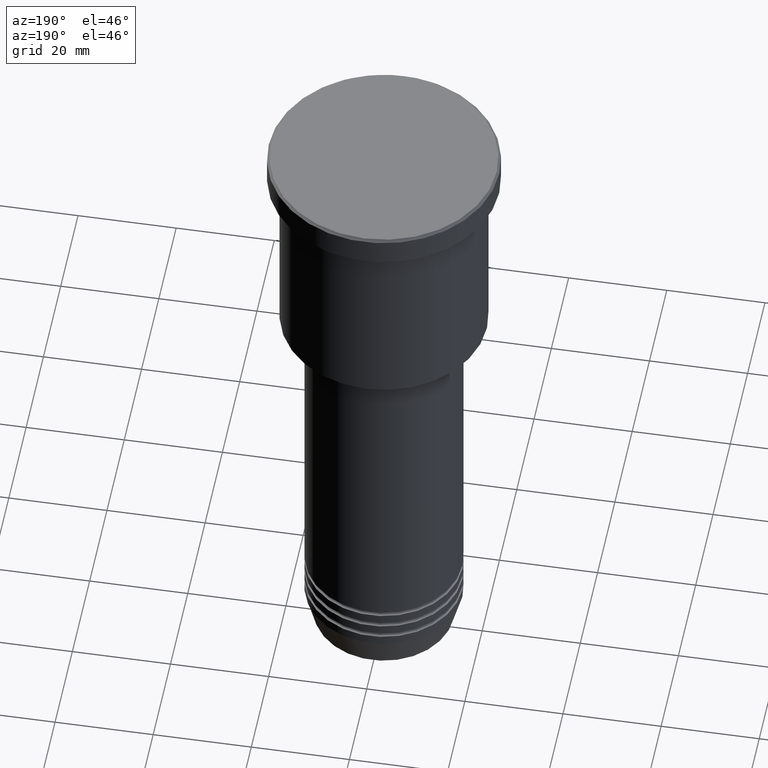
[diagram: clean part render]
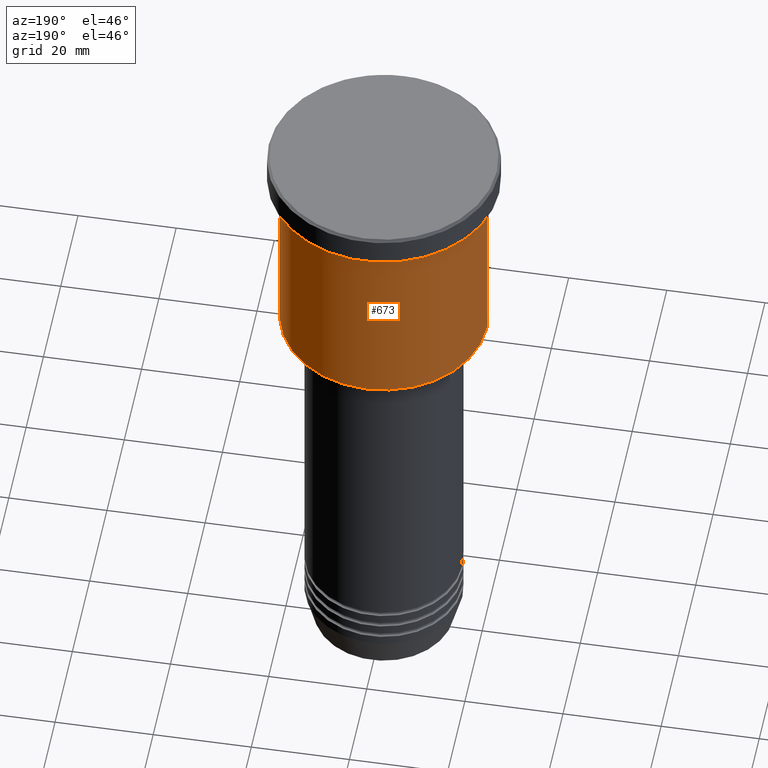
[diagram: same view with one face highlighted and labeled with its STEP entity id]
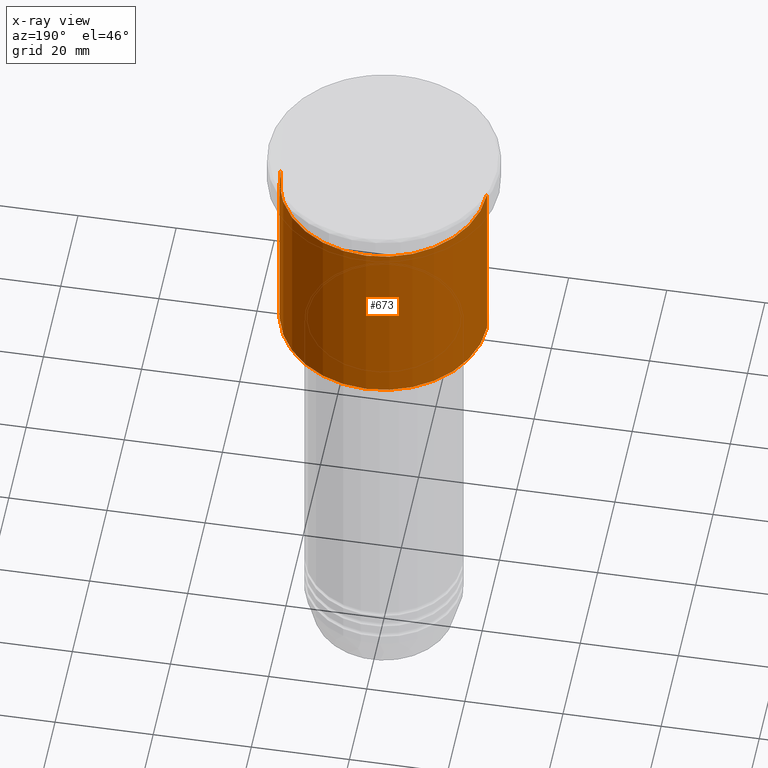
[diagram: x-ray of the same camera — body ghosted, the highlighted face saturated]
A machine part, auxiliary view. The second image highlights one B-rep face of the part: STEP entity #673.
The next image is the same camera in x-ray: the body ghosted, the highlighted face saturated — about 0% of this face is hidden behind the body in this view.
In plain terms, the highlighted cylindrical surface (partial cylindrical patch) has radius 21 mm, axis along (-0, -0, 1).
Its self-contained STEP definition (entity closure, byte-faithful):
#45 = VECTOR ( 'NONE', #282, 1000.000000000000000 ) ;
#65 = EDGE_LOOP ( 'NONE', ( #600, #1175, #840, #768 ) ) ;
#86 = LINE ( 'NONE', #1103, #529 ) ;
#97 = CARTESIAN_POINT ( 'NONE',  ( 0.000000000000000000, 0.000000000000000000, 0.000000000000000000 ) ) ;
#105 = LINE ( 'NONE', #478, #45 ) ;
#157 = AXIS2_PLACEMENT_3D ( 'NONE', #321, #1047, #226 ) ;
#190 = AXIS2_PLACEMENT_3D ( 'NONE', #97, #847, #555 ) ;
#195 = VERTEX_POINT ( 'NONE', #301 ) ;
#197 = CARTESIAN_POINT ( 'NONE',  ( -21.00000000000000000, 2.571758278209441661E-15, -6.999999999999994671 ) ) ;
#226 = DIRECTION ( 'NONE',  ( 1.000000000000000000, 0.000000000000000000, 0.000000000000000000 ) ) ;
#265 = CARTESIAN_POINT ( 'NONE',  ( 21.00000000000000000, 0.000000000000000000, -6.999999999999994671 ) ) ;
#282 = DIRECTION ( 'NONE',  ( -0.000000000000000000, -0.000000000000000000, 1.000000000000000000 ) ) ;
#287 = EDGE_CURVE ( 'NONE', #195, #424, #86, .T. ) ;
#301 = CARTESIAN_POINT ( 'NONE',  ( -21.00000000000000000, 2.571758278209441661E-15, -45.49999999999998579 ) ) ;
#321 = CARTESIAN_POINT ( 'NONE',  ( 0.000000000000000000, 0.000000000000000000, -6.999999999999994671 ) ) ;
#381 = EDGE_CURVE ( 'NONE', #769, #424, #603, .T. ) ;
#424 = VERTEX_POINT ( 'NONE', #197 ) ;
#434 = VERTEX_POINT ( 'NONE', #652 ) ;
#471 = CYLINDRICAL_SURFACE ( 'NONE', #190, 21.00000000000000000 ) ;
#478 = CARTESIAN_POINT ( 'NONE',  ( 21.00000000000000000, 0.000000000000000000, 0.000000000000000000 ) ) ;
#529 = VECTOR ( 'NONE', #822, 1000.000000000000000 ) ;
#548 = FACE_OUTER_BOUND ( 'NONE', #65, .T. ) ;
#555 = DIRECTION ( 'NONE',  ( 1.000000000000000000, 0.000000000000000000, 0.000000000000000000 ) ) ;
#600 = ORIENTED_EDGE ( 'NONE', *, *, #978, .T. ) ;
#603 = CIRCLE ( 'NONE', #157, 21.00000000000000000 ) ;
#611 = DIRECTION ( 'NONE',  ( -1.000000000000000000, 0.000000000000000000, 0.000000000000000000 ) ) ;
#652 = CARTESIAN_POINT ( 'NONE',  ( 21.00000000000000000, 0.000000000000000000, -45.49999999999998579 ) ) ;
#662 = CARTESIAN_POINT ( 'NONE',  ( 0.000000000000000000, 0.000000000000000000, -45.49999999999998579 ) ) ;
#673 = ADVANCED_FACE ( 'NONE', ( #548 ), #471, .T. ) ;
#768 = ORIENTED_EDGE ( 'NONE', *, *, #817, .F. ) ;
#769 = VERTEX_POINT ( 'NONE', #265 ) ;
#773 = AXIS2_PLACEMENT_3D ( 'NONE', #662, #1023, #611 ) ;
#817 = EDGE_CURVE ( 'NONE', #434, #769, #105, .T. ) ;
#822 = DIRECTION ( 'NONE',  ( -0.000000000000000000, -0.000000000000000000, 1.000000000000000000 ) ) ;
#840 = ORIENTED_EDGE ( 'NONE', *, *, #381, .F. ) ;
#847 = DIRECTION ( 'NONE',  ( -0.000000000000000000, -0.000000000000000000, 1.000000000000000000 ) ) ;
#966 = CIRCLE ( 'NONE', #773, 21.00000000000000000 ) ;
#978 = EDGE_CURVE ( 'NONE', #434, #195, #966, .T. ) ;
#1023 = DIRECTION ( 'NONE',  ( -0.000000000000000000, -0.000000000000000000, 1.000000000000000000 ) ) ;
#1047 = DIRECTION ( 'NONE',  ( -0.000000000000000000, -0.000000000000000000, 1.000000000000000000 ) ) ;
#1103 = CARTESIAN_POINT ( 'NONE',  ( -21.00000000000000000, 2.571758278209441661E-15, 0.000000000000000000 ) ) ;
#1175 = ORIENTED_EDGE ( 'NONE', *, *, #287, .T. ) ;